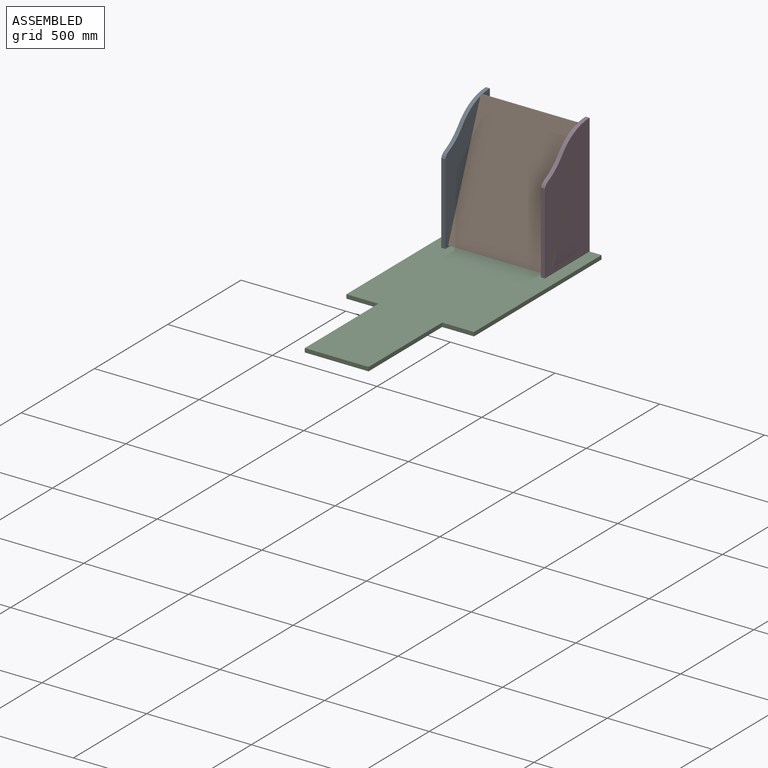
[diagram: assembled view]
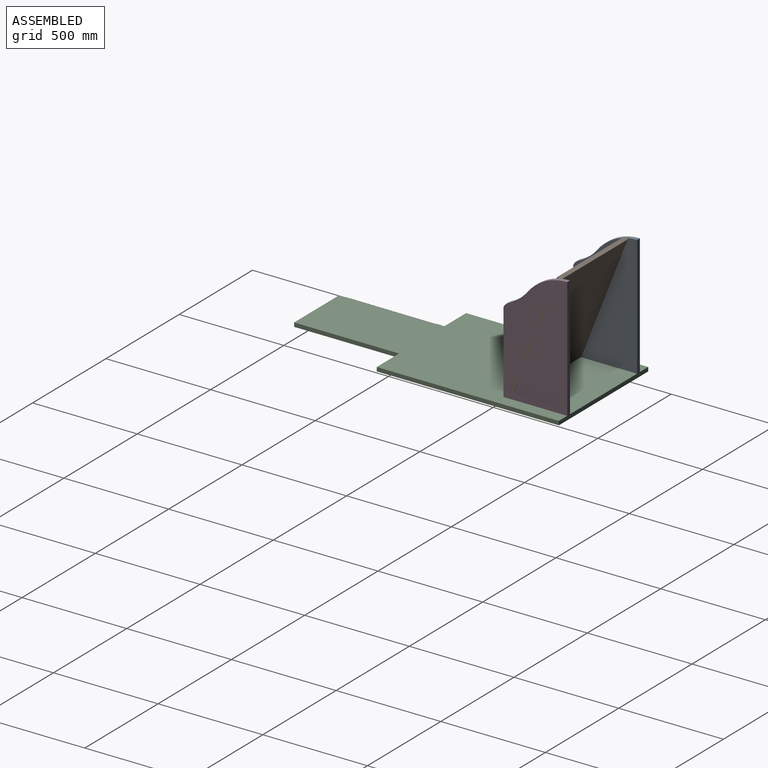
[diagram: assembled view, second angle]
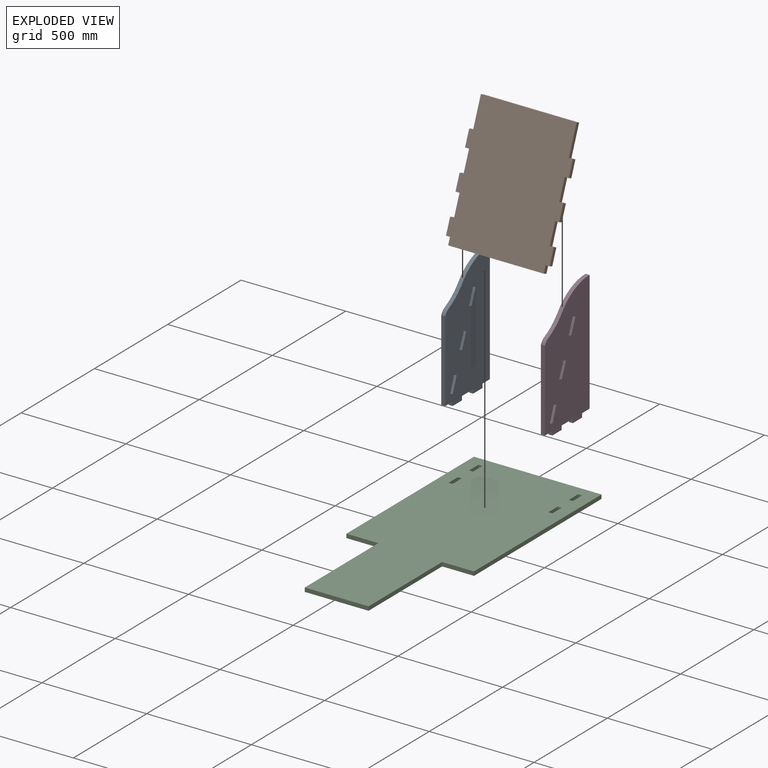
[diagram: exploded view]
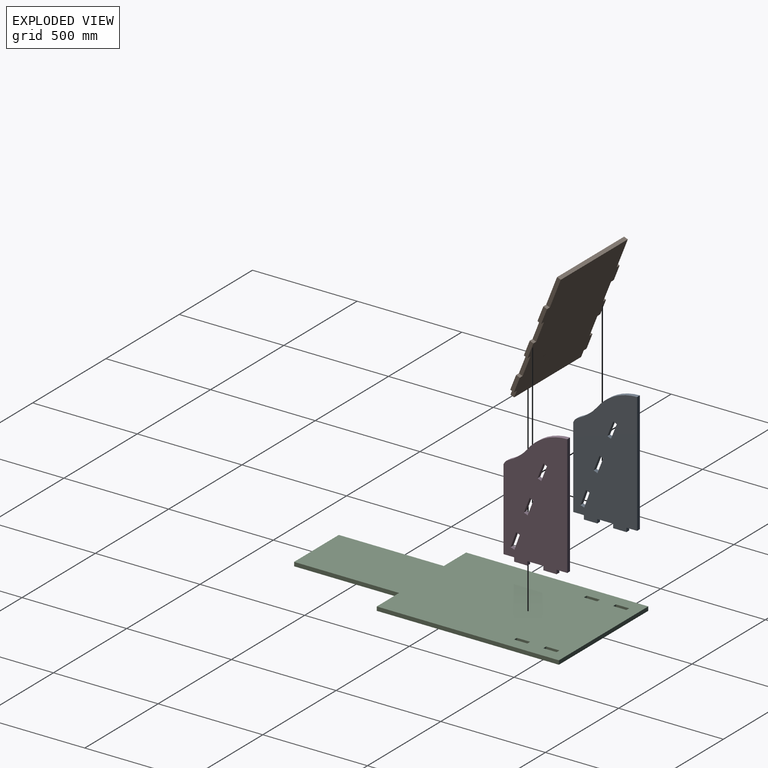
[diagram: exploded view, second angle]
ASSEMBLY  parts=4 mates=3
PART A: 28 faces, bbox 304.8x19.1x596.5 mm
  f0: plane 70.92x27.87mm, normal (0.93,0,-0.37), area 1451.6mm2, adj f1,f25,f26,f27
  f1: plane 19.05x17.73mm, normal (-0.37,0,-0.93), area 362.9mm2, adj f0,f2,f26,f27
  f2: plane 70.92x27.87mm, normal (-0.93,0,0.37), area 1451.6mm2, adj f1,f25,f26,f27
  f3: plane 577.48x19.05mm, normal (1,0,0), area 11001.1mm2, adj f4,f22,f26,f27
  f4: cylinder r=239.96mm len=192.98mm, axis (0,1,0), area 4271.1mm2, adj f3,f5,f26,f27
  f5: cylinder r=257.98mm len=90.2mm, axis (0,1,0), area 2179.2mm2, adj f4,f6,f26,f27
  f6: cylinder r=43.94mm len=23.45mm, axis (0,1,0), area 621.7mm2, adj f5,f7,f26,f27
  f7: plane 387.88x19.05mm, normal (-1,0,0), area 7389.2mm2, adj f6,f8,f26,f27
  f8: plane 50.8x19.05mm, normal (0,0,-1), area 967.7mm2, adj f7,f9,f26,f27
  f9: plane 19.05x19.05mm, normal (-1,0,0), area 362.9mm2, adj f8,f10,f26,f27
  f10: plane 63.5x19.05mm, normal (0,0,-1), area 1209.7mm2, adj f9,f11,f26,f27
  f11: plane 19.05x19.05mm, normal (1,0,0), area 362.9mm2, adj f10,f12,f26,f27
  f12: plane 76.2x19.05mm, normal (0,0,-1), area 1451.6mm2, adj f11,f13,f26,f27
  f13: plane 19.05x19.05mm, normal (-1,0,0), area 362.9mm2, adj f12,f14,f26,f27
  f14: plane 63.5x19.05mm, normal (0,0,-1), area 1209.7mm2, adj f13,f15,f26,f27
  f15: plane 19.05x19.05mm, normal (1,0,0), area 362.9mm2, adj f14,f22,f26,f27
  f16: plane 19.05x17.74mm, normal (-0.37,0,-0.93), area 363mm2, adj f17,f23,f26,f27
  f17: plane 71.15x25.9mm, normal (-0.94,0,0.34), area 1442.4mm2, adj f16,f18,f26,f27
  f18: plane 19.05x17.9mm, normal (0.34,0,0.94), area 362.9mm2, adj f17,f23,f26,f27
  f19: plane 19.05x17.73mm, normal (-0.37,0,-0.93), area 362.9mm2, adj f20,f24,f26,f27
  f20: plane 70.92x27.87mm, normal (-0.93,0,0.37), area 1451.6mm2, adj f19,f21,f26,f27
  f21: plane 19.05x17.73mm, normal (0.37,0,0.93), area 362.9mm2, adj f20,f24,f26,f27
  f22: plane 50.8x19.05mm, normal (0,0,-1), area 967.7mm2, adj f3,f15,f26,f27
  f23: plane 71.6x26.06mm, normal (0.94,0,-0.34), area 1451.6mm2, adj f16,f18,f26,f27
  f24: plane 70.92x27.87mm, normal (0.93,0,-0.37), area 1451.6mm2, adj f19,f21,f26,f27
  f25: plane 19.05x17.73mm, normal (0.37,0,0.93), area 362.9mm2, adj f0,f2,f26,f27
  f26: plane 596.53x304.8mm, normal (0,-1,0), area 152296.2mm2, adj f0,f1,f2,f3,f4,f5,f6,f7
  f27: plane 596.53x304.8mm, normal (0,1,0), area 152296.2mm2, adj f0,f1,f2,f3,f4,f5,f6,f7
PART B: 30 faces, bbox 19.1x495.3x609.6 mm
  f0: plane 19.05x19.05mm, normal (0,0,-1), area 362.9mm2, adj f1,f27,f28,f29
  f1: plane 34.46x19.05mm, normal (0,-1,0), area 656.5mm2, adj f0,f2,f28,f29
  f2: plane 457.2x19.05mm, normal (0,0,-1), area 8709.7mm2, adj f1,f3,f28,f29
  f3: plane 34.46x19.05mm, normal (0,1,0), area 656.5mm2, adj f2,f4,f28,f29
  f4: plane 19.05x19.05mm, normal (0,0,-1), area 362.9mm2, adj f3,f5,f28,f29
  f5: plane 76.2x19.05mm, normal (0,1,0), area 1451.6mm2, adj f4,f6,f28,f29
  f6: plane 19.05x19.05mm, normal (0,0,1), area 362.9mm2, adj f5,f7,f28,f29
  f7: plane 101.6x19.05mm, normal (0,1,0), area 1935.5mm2, adj f6,f8,f28,f29
  f8: plane 19.05x19.05mm, normal (0,0,-1), area 362.9mm2, adj f7,f9,f28,f29
  f9: plane 76.2x19.05mm, normal (0,1,0), area 1451.6mm2, adj f8,f10,f28,f29
  f10: plane 19.05x19.05mm, normal (0,0,1), area 362.9mm2, adj f9,f11,f28,f29
  f11: plane 101.6x19.05mm, normal (0,1,0), area 1935.5mm2, adj f10,f12,f28,f29
  f12: plane 19.05x19.05mm, normal (0,0,-1), area 362.9mm2, adj f11,f13,f28,f29
  f13: plane 76.2x19.05mm, normal (0,1,0), area 1451.6mm2, adj f12,f14,f28,f29
  f14: plane 19.05x19.05mm, normal (0,0,1), area 362.9mm2, adj f13,f15,f28,f29
  f15: plane 143.34x19.05mm, normal (0,1,0), area 2730.6mm2, adj f14,f16,f28,f29
  f16: plane 457.2x19.05mm, normal (0,0,1), area 8709.7mm2, adj f15,f17,f28,f29
  f17: plane 143.34x19.05mm, normal (0,-1,0), area 2730.6mm2, adj f16,f18,f28,f29
  f18: plane 19.05x19.05mm, normal (0,0,1), area 362.9mm2, adj f17,f19,f28,f29
  f19: plane 76.2x19.05mm, normal (0,-1,0), area 1451.6mm2, adj f18,f20,f28,f29
  f20: plane 19.05x19.05mm, normal (0,0,-1), area 362.9mm2, adj f19,f21,f28,f29
  f21: plane 101.6x19.05mm, normal (0,-1,0), area 1935.5mm2, adj f20,f22,f28,f29
  f22: plane 19.05x19.05mm, normal (0,0,1), area 362.9mm2, adj f21,f23,f28,f29
  f23: plane 76.2x19.05mm, normal (0,-1,0), area 1451.6mm2, adj f22,f24,f28,f29
  f24: plane 19.05x19.05mm, normal (0,0,-1), area 362.9mm2, adj f23,f25,f28,f29
  f25: plane 101.6x19.05mm, normal (0,-1,0), area 1935.5mm2, adj f24,f26,f28,f29
  f26: plane 19.05x19.05mm, normal (0,0,1), area 362.9mm2, adj f25,f27,f28,f29
  f27: plane 76.2x19.05mm, normal (0,-1,0), area 1451.6mm2, adj f0,f26,f28,f29
  f28: plane 609.6x495.3mm, normal (1,0,0), area 287418.8mm2, adj f0,f1,f2,f3,f4,f5,f6,f7
  f29: plane 609.6x495.3mm, normal (-1,0,0), area 287418.8mm2, adj f0,f1,f2,f3,f4,f5,f6,f7
PART C: 26 faces, bbox 609.6x1371.6x19.1 mm
  f0: plane 152.4x19.05mm, normal (0,-1,0), area 2903.2mm2, adj f1,f23,f24,f25
  f1: plane 869.95x19.05mm, normal (1,0,0), area 16572.5mm2, adj f0,f2,f24,f25
  f2: plane 609.6x19.05mm, normal (0,1,0), area 11612.9mm2, adj f1,f3,f24,f25
  f3: plane 869.95x19.05mm, normal (-1,0,0), area 16572.5mm2, adj f2,f4,f24,f25
  f4: plane 152.4x19.05mm, normal (0,-1,0), area 2903.2mm2, adj f3,f5,f24,f25
  f5: plane 501.65x19.05mm, normal (-1,0,0), area 9556.5mm2, adj f4,f6,f24,f25
  f6: plane 304.8x19.05mm, normal (0,-1,0), area 5806.4mm2, adj f5,f23,f24,f25
  f7: plane 63.5x19.05mm, normal (1,0,0), area 1209.7mm2, adj f8,f19,f24,f25
  f8: plane 19.05x19.05mm, normal (0,-1,0), area 362.9mm2, adj f7,f9,f24,f25
  f9: plane 63.5x19.05mm, normal (-1,0,0), area 1209.7mm2, adj f8,f19,f24,f25
  f10: plane 63.5x19.05mm, normal (-1,0,0), area 1209.7mm2, adj f11,f20,f24,f25
  f11: plane 19.05x19.05mm, normal (0,1,0), area 362.9mm2, adj f10,f12,f24,f25
  f12: plane 63.5x19.05mm, normal (1,0,0), area 1209.7mm2, adj f11,f20,f24,f25
  f13: plane 19.05x19.05mm, normal (0,-1,0), area 362.9mm2, adj f14,f21,f24,f25
  f14: plane 63.5x19.05mm, normal (-1,0,0), area 1209.7mm2, adj f13,f15,f24,f25
  f15: plane 19.05x19.05mm, normal (0,1,0), area 362.9mm2, adj f14,f21,f24,f25
  f16: plane 19.05x19.05mm, normal (0,-1,0), area 362.9mm2, adj f17,f22,f24,f25
  f17: plane 63.5x19.05mm, normal (-1,0,0), area 1209.7mm2, adj f16,f18,f24,f25
  f18: plane 19.05x19.05mm, normal (0,1,0), area 362.9mm2, adj f17,f22,f24,f25
  f19: plane 19.05x19.05mm, normal (0,1,0), area 362.9mm2, adj f7,f9,f24,f25
  f20: plane 19.05x19.05mm, normal (0,-1,0), area 362.9mm2, adj f10,f12,f24,f25
  f21: plane 63.5x19.05mm, normal (1,0,0), area 1209.7mm2, adj f13,f15,f24,f25
  f22: plane 63.5x19.05mm, normal (1,0,0), area 1209.7mm2, adj f16,f18,f24,f25
  f23: plane 501.65x19.05mm, normal (1,0,0), area 9556.5mm2, adj f0,f6,f24,f25
  f24: plane 1371.6x609.6mm, normal (0,0,1), area 678384.7mm2, adj f0,f1,f2,f3,f4,f5,f6,f7
  f25: plane 1371.6x609.6mm, normal (0,0,-1), area 678384.7mm2, adj f0,f1,f2,f3,f4,f5,f6,f7
PART D: same geometry as A
PLACE A rot(axis=(0,0,1),90deg) t=(-205.15,440.43,247.77)mm
PLACE B rot(axis=(-0.18,-0.18,-0.97),92deg) t=(-186.1,340.31,-83.05)mm
PLACE C t=(-414.7,-764.08,-103)mm
PLACE D rot(axis=(0,0,1),90deg) t=(271.1,440.43,247.77)mm
MATE fastened A.f15 <-> C.f8  axis (0,1,0) through (-195.62,556.72,-93.47)mm
MATE fastened D.f15 <-> C.f13  axis (0,1,0) through (280.63,556.72,-93.47)mm
MATE fastened B.f18 <-> A.f19  axis (0,0.37,0.93) through (-195.62,501.94,354.4)mm
